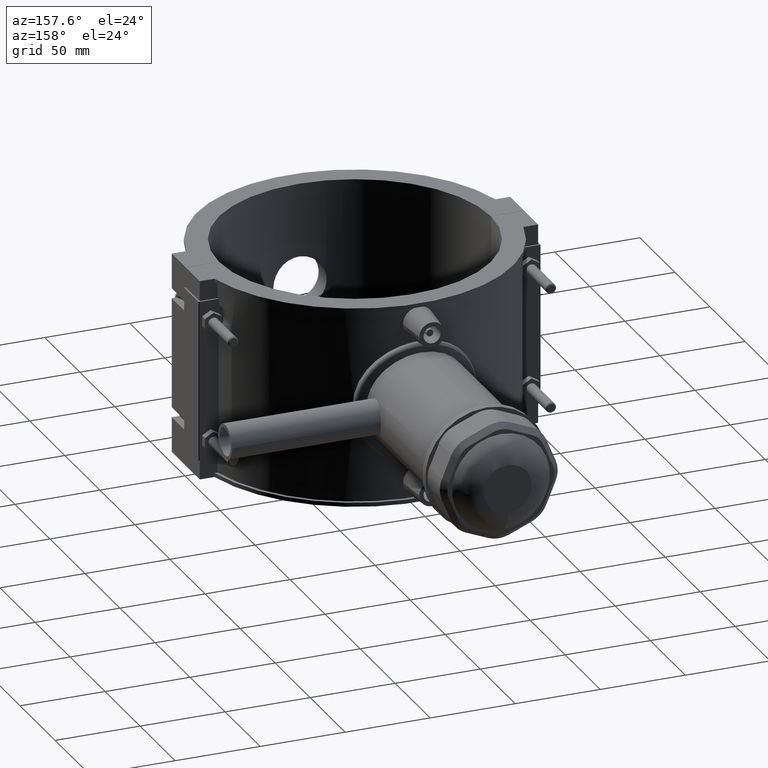
[diagram: clean part render]
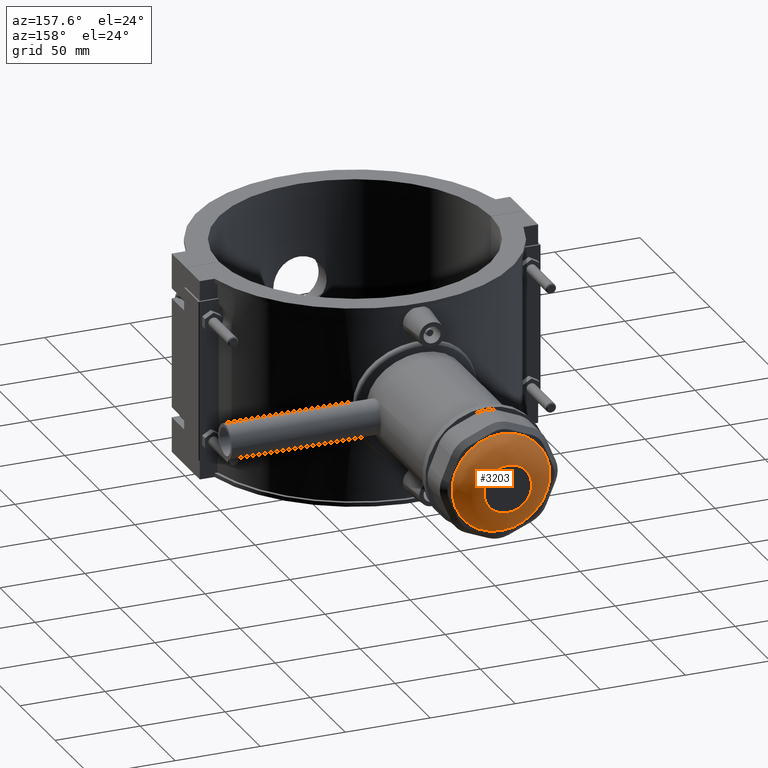
[diagram: same view with one face highlighted and labeled with its STEP entity id]
A machine part, auxiliary view. The second image highlights one B-rep face of the part: STEP entity #3203.
In plain terms, the highlighted face is a freeform B-spline surface patch.
Its self-contained STEP definition (entity closure, byte-faithful):
#15=(
BOUNDED_CURVE()
B_SPLINE_CURVE(2,(#6371,#6372,#6373),.UNSPECIFIED.,.F.,.F.)
B_SPLINE_CURVE_WITH_KNOTS((3,3),(-1.5707963267949,-0.407428895947171),
 .UNSPECIFIED.)
CURVE()
GEOMETRIC_REPRESENTATION_ITEM()
RATIONAL_B_SPLINE_CURVE((1.,0.835538748353422,1.))
REPRESENTATION_ITEM('')
);
#16=(
BOUNDED_SURFACE()
B_SPLINE_SURFACE(2,2,((#6343,#6344,#6345,#6346,#6347,#6348,#6349,#6350,
#6351),(#6352,#6353,#6354,#6355,#6356,#6357,#6358,#6359,#6360),(#6361,#6362,
#6363,#6364,#6365,#6366,#6367,#6368,#6369)),.UNSPECIFIED.,.F.,.T.,.F.)
B_SPLINE_SURFACE_WITH_KNOTS((3,3),(3,2,2,2,3),(0.407428895947171,1.5707963267949),
(-3.14159265358979,-1.5707963267949,0.,1.5707963267949,3.14159265358979),
 .UNSPECIFIED.)
GEOMETRIC_REPRESENTATION_ITEM()
RATIONAL_B_SPLINE_SURFACE(((1.,0.707106781186548,1.,0.707106781186548,1.,
0.707106781186548,1.,0.707106781186548,1.),(0.835538748353422,0.590815114904825,
0.835538748353422,0.590815114904825,0.835538748353422,0.590815114904825,
0.835538748353422,0.590815114904825,0.835538748353422),(1.,0.707106781186548,
1.,0.707106781186548,1.,0.707106781186548,1.,0.707106781186548,1.)))
REPRESENTATION_ITEM('')
SURFACE()
);
#864=CIRCLE('',#3475,14.1097174976109);
#865=CIRCLE('',#3476,28.8);
#1035=FACE_OUTER_BOUND('',#1269,.T.);
#1269=EDGE_LOOP('',(#2865,#2866,#2867,#2868));
#1628=VERTEX_POINT('',#6341);
#1629=VERTEX_POINT('',#6370);
#2042=EDGE_CURVE('',#1628,#1628,#864,.T.);
#2043=EDGE_CURVE('',#1628,#1629,#15,.T.);
#2044=EDGE_CURVE('',#1629,#1629,#865,.T.);
#2865=ORIENTED_EDGE('',*,*,#2042,.T.);
#2866=ORIENTED_EDGE('',*,*,#2043,.T.);
#2867=ORIENTED_EDGE('',*,*,#2044,.T.);
#2868=ORIENTED_EDGE('',*,*,#2043,.F.);
#3203=ADVANCED_FACE('',(#1035),#16,.T.);
#3475=AXIS2_PLACEMENT_3D('',#6342,#4250,#4251);
#3476=AXIS2_PLACEMENT_3D('',#6374,#4252,#4253);
#4250=DIRECTION('center_axis',(0.,-1.,-3.06161699786838E-16));
#4251=DIRECTION('ref_axis',(-6.12323399573677E-17,-3.14739972593539E-16,
1.));
#4252=DIRECTION('center_axis',(0.,1.,3.06161699786838E-16));
#4253=DIRECTION('ref_axis',(1.,0.,0.));
#6341=CARTESIAN_POINT('',(2.59191305554839E-15,218.,-14.1097174976108));
#6342=CARTESIAN_POINT('Origin',(0.,218.,4.22503145705837E-14));
#6343=CARTESIAN_POINT('Ctrl Pts',(1.76349139077219E-15,208.34,-28.8));
#6344=CARTESIAN_POINT('Ctrl Pts',(28.8,208.34,-28.8));
#6345=CARTESIAN_POINT('Ctrl Pts',(28.8,208.34,4.1056283941415E-14));
#6346=CARTESIAN_POINT('Ctrl Pts',(28.8,208.34,28.8));
#6347=CARTESIAN_POINT('Ctrl Pts',(-1.76349139077219E-15,208.34,28.8));
#6348=CARTESIAN_POINT('Ctrl Pts',(-28.8,208.34,28.8));
#6349=CARTESIAN_POINT('Ctrl Pts',(-28.8,208.34,3.75293011598707E-14));
#6350=CARTESIAN_POINT('Ctrl Pts',(-28.8,208.34,-28.8));
#6351=CARTESIAN_POINT('Ctrl Pts',(1.76349139077219E-15,208.34,-28.8));
#6352=CARTESIAN_POINT('Ctrl Pts',(1.50821121350704E-15,218.,-24.6309583229566));
#6353=CARTESIAN_POINT('Ctrl Pts',(24.6309583229567,218.,-24.6309583229566));
#6354=CARTESIAN_POINT('Ctrl Pts',(24.6309583229567,218.,4.37585257840907E-14));
#6355=CARTESIAN_POINT('Ctrl Pts',(24.6309583229567,218.,24.6309583229567));
#6356=CARTESIAN_POINT('Ctrl Pts',(-1.50821121350704E-15,218.,24.6309583229567));
#6357=CARTESIAN_POINT('Ctrl Pts',(-24.6309583229567,218.,24.6309583229567));
#6358=CARTESIAN_POINT('Ctrl Pts',(-24.6309583229567,218.,4.07421033570767E-14));
#6359=CARTESIAN_POINT('Ctrl Pts',(-24.6309583229567,218.,-24.6309583229566));
#6360=CARTESIAN_POINT('Ctrl Pts',(1.50821121350704E-15,218.,-24.6309583229566));
#6361=CARTESIAN_POINT('Ctrl Pts',(8.63971018516129E-16,218.,-14.1097174976108));
#6362=CARTESIAN_POINT('Ctrl Pts',(14.1097174976109,218.,-14.1097174976108));
#6363=CARTESIAN_POINT('Ctrl Pts',(14.1097174976109,218.,4.31142855890998E-14));
#6364=CARTESIAN_POINT('Ctrl Pts',(14.1097174976109,218.,14.1097174976109));
#6365=CARTESIAN_POINT('Ctrl Pts',(-8.63971018516129E-16,218.,14.1097174976109));
#6366=CARTESIAN_POINT('Ctrl Pts',(-14.1097174976109,218.,14.1097174976109));
#6367=CARTESIAN_POINT('Ctrl Pts',(-14.1097174976109,218.,4.13863435520676E-14));
#6368=CARTESIAN_POINT('Ctrl Pts',(-14.1097174976109,218.,-14.1097174976108));
#6369=CARTESIAN_POINT('Ctrl Pts',(8.63971018516129E-16,218.,-14.1097174976108));
#6370=CARTESIAN_POINT('',(5.29047417231657E-15,208.34,-28.8));
#6371=CARTESIAN_POINT('Ctrl Pts',(8.63971018516129E-16,218.,-14.1097174976108));
#6372=CARTESIAN_POINT('Ctrl Pts',(1.50821121350704E-15,218.,-24.6309583229566));
#6373=CARTESIAN_POINT('Ctrl Pts',(1.76349139077219E-15,208.34,-28.8));
#6374=CARTESIAN_POINT('Origin',(0.,208.34,3.92927925506428E-14));